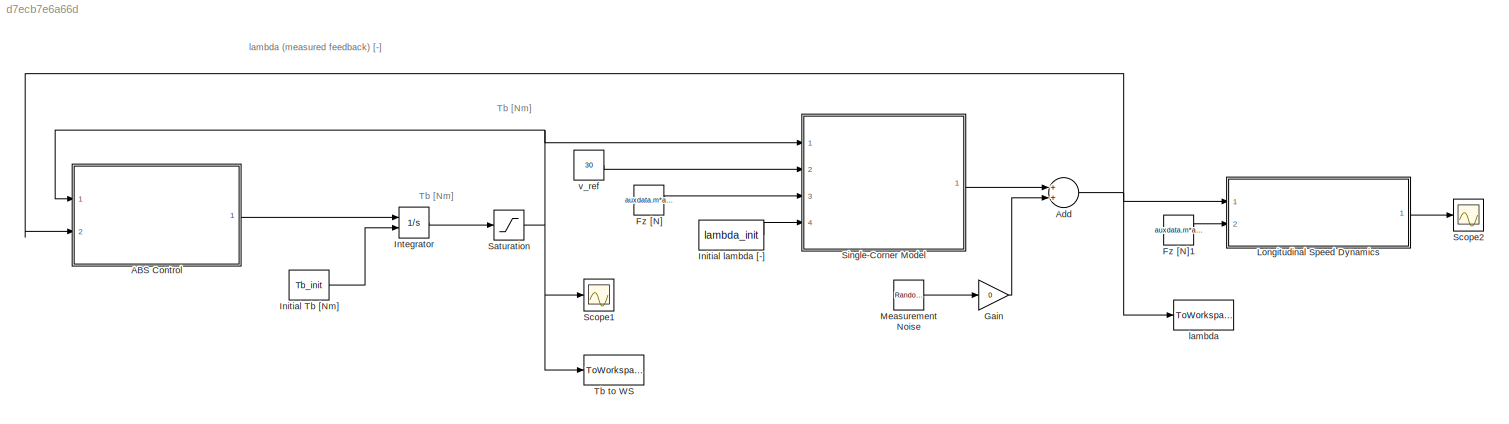
MODEL slx_d7ecb7e6a66d
KIND model
CONFIG AbsTol = auto
CONFIG EnableMultiTasking = on
CONFIG FixedStep = auto
CONFIG MaxStep = 1e-3
CONFIG MinStep = auto
CONFIG RelTol = 1e-3
CONFIG SampleTimeConstraint = Unconstrained
CONFIG Solver = VariableStepAuto
CONFIG SolverName = VariableStepAuto
CONFIG StartTime = 0.0
CONFIG StopTime = tf
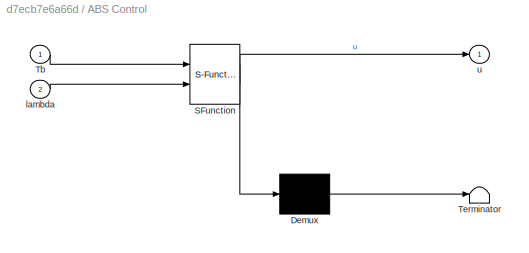
BLOCK [SubSystem] ABS Control
  ErrorFcn = Stateflow.Translate.translate
  PermitHierarchicalResolution = ExplicitOnly
  Ports = [2, 1]
  RequestExecContextInheritance = off
  SFBlockType = Chart
  TreatAsAtomicUnit = on
  Variant = off
BLOCK [Demux] ABS Control/ Demux 
  Outputs = 1
  Ports = [1, 1]
BLOCK [S-Function] ABS Control/ SFunction 
  EnableBusSupport = on
  FunctionName = sf_sfun
  Parameters = Tb_max,Tb_min,k,lambda_max,lambda_min
  PortCounts = [2 2]
  Ports = [2, 2]
  SFcnIsStateOwnerBlock = off
  SFunctionDeploymentMode = off
  Tag = Stateflow S-Function HAB_control 3
BLOCK [Terminator] ABS Control/ Terminator 
BLOCK [Inport] ABS Control/Tb
  IconDisplay = Port number
BLOCK [Inport] ABS Control/lambda
  IconDisplay = Port number
  Port = 2
BLOCK [Outport] ABS Control/u
  IconDisplay = Port number
BLOCK [Sum] Add
  InputSameDT = off
  OutDataTypeStr = Inherit: Inherit via internal rule
  Ports = [2, 1]
  SaturateOnIntegerOverflow = off
BLOCK [Constant] Fz [N]
  Value = auxdata.m*auxdata.g
BLOCK [Constant] Fz [N]1
  Value = auxdata.m*auxdata.g
BLOCK [Gain] Gain
  Gain = 0
  OutDataTypeStr = Inherit: Inherit via internal rule
  ParamDataTypeStr = Inherit: Inherit via internal rule
  SaturateOnIntegerOverflow = off
BLOCK [Constant] Initial Tb [Nm]
  Value = Tb_init
BLOCK [Constant] Initial lambda [-]
  Value = lambda_init
BLOCK [Integrator] Integrator
  InitialConditionSource = external
  Ports = [2, 1]
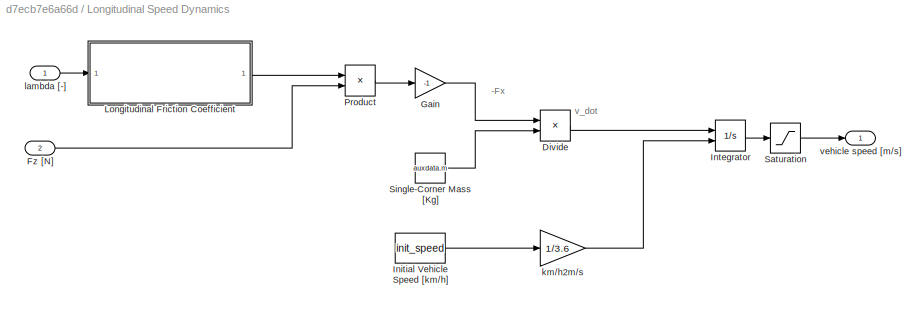
BLOCK [SubSystem] Longitudinal Speed Dynamics
  Ports = [2, 1]
  RequestExecContextInheritance = off
  Variant = off
BLOCK [Product] Longitudinal Speed Dynamics/Divide
  InputSameDT = off
  Inputs = */
  OutDataTypeStr = Inherit: Inherit via internal rule
  Ports = [2, 1]
  RndMeth = Floor
  SaturateOnIntegerOverflow = off
BLOCK [Inport] Longitudinal Speed Dynamics/Fz [N]
  IconDisplay = Port number
  Port = 2
BLOCK [Gain] Longitudinal Speed Dynamics/Gain
  Gain = -1
  OutDataTypeStr = Inherit: Inherit via internal rule
  ParamDataTypeStr = Inherit: Inherit via internal rule
  SaturateOnIntegerOverflow = off
BLOCK [Constant] Longitudinal Speed Dynamics/Initial Vehicle Speed [km//h]
  Value = init_speed
BLOCK [Integrator] Longitudinal Speed Dynamics/Integrator
  InitialConditionSource = external
  Ports = [2, 1]
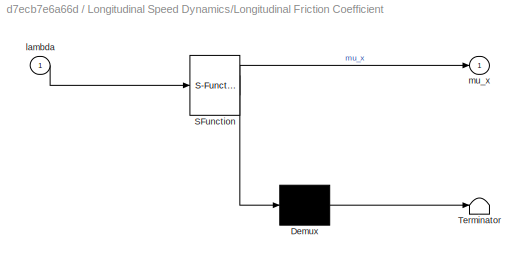
BLOCK [SubSystem] Longitudinal Speed Dynamics/Longitudinal Friction Coefficient
  ErrorFcn = Stateflow.Translate.translate
  PermitHierarchicalResolution = ExplicitOnly
  Ports = [1, 1]
  RequestExecContextInheritance = off
  SFBlockType = MATLAB Function
  TreatAsAtomicUnit = on
  Variant = off
BLOCK [Demux] Longitudinal Speed Dynamics/Longitudinal Friction Coefficient/ Demux 
  Outputs = 1
  Ports = [1, 1]
BLOCK [S-Function] Longitudinal Speed Dynamics/Longitudinal Friction Coefficient/ SFunction 
  EnableBusSupport = on
  FunctionName = sf_sfun
  Parameters = auxdata
  PortCounts = [1 2]
  Ports = [1, 2]
  SFcnIsStateOwnerBlock = off
  SFunctionDeploymentMode = off
  Tag = Stateflow S-Function HAB_control 1
BLOCK [Terminator] Longitudinal Speed Dynamics/Longitudinal Friction Coefficient/ Terminator 
BLOCK [Inport] Longitudinal Speed Dynamics/Longitudinal Friction Coefficient/lambda
  IconDisplay = Port number
BLOCK [Outport] Longitudinal Speed Dynamics/Longitudinal Friction Coefficient/mu_x
  IconDisplay = Port number
BLOCK [Product] Longitudinal Speed Dynamics/Product
  InputSameDT = off
  OutDataTypeStr = Inherit: Inherit via internal rule
  Ports = [2, 1]
  RndMeth = Floor
  SaturateOnIntegerOverflow = off
BLOCK [Saturate] Longitudinal Speed Dynamics/Saturation
  InputPortMap = u0
  LowerLimit = 0
  Ports = [1, 1]
  UpperLimit = 100
BLOCK [Constant] Longitudinal Speed Dynamics/Single-Corner Mass [Kg]
  Value = auxdata.m
BLOCK [Gain] Longitudinal Speed Dynamics/km//h2m//s
  Gain = 1/3.6
  OutDataTypeStr = Inherit: Inherit via internal rule
  ParamDataTypeStr = Inherit: Inherit via internal rule
  SaturateOnIntegerOverflow = off
BLOCK [Inport] Longitudinal Speed Dynamics/lambda [-]
  IconDisplay = Port number
BLOCK [Outport] Longitudinal Speed Dynamics/vehicle speed [m//s]
  IconDisplay = Port number
BLOCK [RandomNumber] Measurement Noise
  Variance = 0.001
BLOCK [Saturate] Saturation
  InputPortMap = u0
  LowerLimit = 0
  Ports = [1, 1]
  UpperLimit = 2e3
BLOCK [Scope] Scope1
  NumInputPorts = 1
  Ports = [1]
  ScopeSpecificationString = Simulink.scopes.TimeScopeBlockCfg('CurrentConfiguration', extmgr.ConfigurationSet(extmgr.Configuration('Core','General UI',true),extmgr.Configuration('Core','Source UI',true),extmgr.Configuration('Sources','WiredSimulink',true,'DataLoggingVariableName','ScopeData1'),extmgr.Configuration('Visuals','Time Domain',true,'SerializedDisplays',{struct('MinYLimReal','-112.9906','MaxYLimReal','1016.91537','...<+1436ch>
BLOCK [Scope] Scope2
  NumInputPorts = 1
  Ports = [1]
  ScopeSpecificationString = Simulink.scopes.TimeScopeBlockCfg('CurrentConfiguration', extmgr.ConfigurationSet(extmgr.Configuration('Core','General UI',true),extmgr.Configuration('Core','Source UI',true),extmgr.Configuration('Sources','WiredSimulink',true,'DataLoggingVariableName','ScopeData1'),extmgr.Configuration('Visuals','Time Domain',true,'SerializedDisplays',{struct('MinYLimReal','-3.47222','MaxYLimReal','31.25','YLabel...<+1397ch>
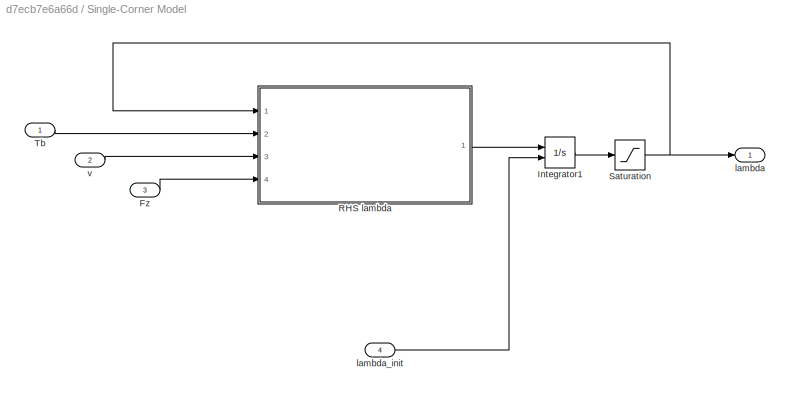
BLOCK [SubSystem] Single-Corner Model
  Ports = [4, 1]
  RequestExecContextInheritance = off
  Variant = off
BLOCK [Inport] Single-Corner Model/Fz
  IconDisplay = Port number
  Port = 3
BLOCK [Integrator] Single-Corner Model/Integrator1
  InitialConditionSource = external
  Ports = [2, 1]
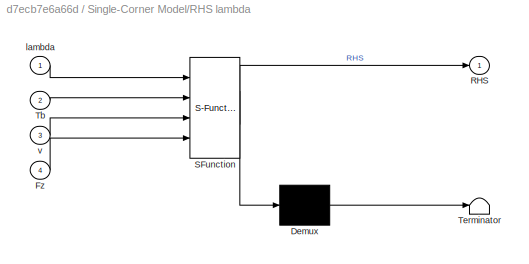
BLOCK [SubSystem] Single-Corner Model/RHS lambda
  ErrorFcn = Stateflow.Translate.translate
  PermitHierarchicalResolution = ExplicitOnly
  Ports = [4, 1]
  RequestExecContextInheritance = off
  SFBlockType = MATLAB Function
  TreatAsAtomicUnit = on
  Variant = off
BLOCK [Demux] Single-Corner Model/RHS lambda/ Demux 
  Outputs = 1
  Ports = [1, 1]
BLOCK [S-Function] Single-Corner Model/RHS lambda/ SFunction 
  EnableBusSupport = on
  FunctionName = sf_sfun
  Parameters = auxdata
  PortCounts = [4 2]
  Ports = [4, 2]
  SFcnIsStateOwnerBlock = off
  SFunctionDeploymentMode = off
  Tag = Stateflow S-Function HAB_control 2
BLOCK [Terminator] Single-Corner Model/RHS lambda/ Terminator 
BLOCK [Inport] Single-Corner Model/RHS lambda/Fz
  IconDisplay = Port number
  Port = 4
BLOCK [Outport] Single-Corner Model/RHS lambda/RHS
  IconDisplay = Port number
BLOCK [Inport] Single-Corner Model/RHS lambda/Tb
  IconDisplay = Port number
  Port = 2
BLOCK [Inport] Single-Corner Model/RHS lambda/lambda
  IconDisplay = Port number
BLOCK [Inport] Single-Corner Model/RHS lambda/v
  IconDisplay = Port number
  Port = 3
BLOCK [Saturate] Single-Corner Model/Saturation
  InputPortMap = u0
  LowerLimit = 0
  Ports = [1, 1]
  UpperLimit = 0.99
BLOCK [Inport] Single-Corner Model/Tb
  IconDisplay = Port number
BLOCK [Outport] Single-Corner Model/lambda
  IconDisplay = Port number
BLOCK [Inport] Single-Corner Model/lambda_init
  IconDisplay = Port number
  Port = 4
BLOCK [Inport] Single-Corner Model/v
  IconDisplay = Port number
  Port = 2
BLOCK [ToWorkspace] Tb to WS
  FixptAsFi = on
  MaxDataPoints = inf
  Ports = [1]
  SampleTime = -1
  Save2DSignal = 3-D array (concatenate along third dimension)
  SaveFormat = Timeseries
  VariableName = Tb_sim
BLOCK [ToWorkspace] lambda
  FixptAsFi = on
  MaxDataPoints = inf
  Ports = [1]
  SampleTime = -1
  Save2DSignal = 3-D array (concatenate along third dimension)
  SaveFormat = Timeseries
  VariableName = lambda_sim
BLOCK [Constant] v_ref
  Value = 30
ANNOTATION (root): Tb [Nm]
ANNOTATION (root): lambda (measured feedback) [-]
ANNOTATION Longitudinal Speed Dynamics: -Fx
ANNOTATION Longitudinal Speed Dynamics: v_dot
LINE ABS Control:1 -> Integrator:1
NET Add:1 -> ABS Control:2, Longitudinal Speed Dynamics:1, lambda:1
LINE Fz [N]1:1 -> Longitudinal Speed Dynamics:2
LINE Fz [N]:1 -> Single-Corner Model:3
LINE Gain:1 -> Add:2
LINE Initial Tb [Nm]:1 -> Integrator:2
LINE Initial lambda [-]:1 -> Single-Corner Model:4
LINE Integrator:1 -> Saturation:1
LINE Longitudinal Speed Dynamics/Divide:1 -> Longitudinal Speed Dynamics/Integrator:1
LINE Longitudinal Speed Dynamics/Fz [N]:1 -> Longitudinal Speed Dynamics/Product:2
LINE Longitudinal Speed Dynamics/Gain:1 -> Longitudinal Speed Dynamics/Divide:1
LINE Longitudinal Speed Dynamics/Initial Vehicle Speed [km//h]:1 -> Longitudinal Speed Dynamics/km//h2m//s:1
LINE Longitudinal Speed Dynamics/Integrator:1 -> Longitudinal Speed Dynamics/Saturation:1
LINE Longitudinal Speed Dynamics/Longitudinal Friction Coefficient:1 -> Longitudinal Speed Dynamics/Product:1
LINE Longitudinal Speed Dynamics/Product:1 -> Longitudinal Speed Dynamics/Gain:1
LINE Longitudinal Speed Dynamics/Saturation:1 -> Longitudinal Speed Dynamics/vehicle speed [m//s]:1
LINE Longitudinal Speed Dynamics/Single-Corner Mass [Kg]:1 -> Longitudinal Speed Dynamics/Divide:2
LINE Longitudinal Speed Dynamics/km//h2m//s:1 -> Longitudinal Speed Dynamics/Integrator:2
LINE Longitudinal Speed Dynamics/lambda [-]:1 -> Longitudinal Speed Dynamics/Longitudinal Friction Coefficient:1
LINE Longitudinal Speed Dynamics:1 -> Scope2:1
LINE Measurement Noise:1 -> Gain:1
NET Saturation:1 -> ABS Control:1, Scope1:1, Single-Corner Model:1, Tb to WS:1
LINE Single-Corner Model/Fz:1 -> Single-Corner Model/RHS lambda:4
LINE Single-Corner Model/Integrator1:1 -> Single-Corner Model/Saturation:1
LINE Single-Corner Model/RHS lambda:1 -> Single-Corner Model/Integrator1:1
NET Single-Corner Model/Saturation:1 -> Single-Corner Model/RHS lambda:1, Single-Corner Model/lambda:1
LINE Single-Corner Model/Tb:1 -> Single-Corner Model/RHS lambda:2
LINE Single-Corner Model/lambda_init:1 -> Single-Corner Model/Integrator1:2
LINE Single-Corner Model/v:1 -> Single-Corner Model/RHS lambda:3
LINE Single-Corner Model:1 -> Add:1
LINE v_ref:1 -> Single-Corner Model:2
note: NET lines group one-source signal fan-out (src -> all destinations, sorted); 1:1 wires keep LINE
CHART Longitudinal Speed Dynamics/Longitudinal Friction Coefficient states=1 transitions=1
  STATE_LABEL 'eML_blk_kernel()'
  STATE_LABEL 'SCRIPT:\nfunction mu_x = LongitudinalFrction(lambda,auxdata)\n    \nmu_x = burckhardt(lambda,auxdata.road_condition);\n'
CHART Single-Corner Model/RHS lambda states=1 transitions=1
  STATE_LABEL 'eML_blk_kernel()'
  STATE_LABEL "SCRIPT:\nfunction RHS = lambdaDyn(lambda,Tb,v,Fz,auxdata)\n%% RHS = LAMBDADYN(lambda,Fz,road_condition)\n% Right hand side of the longitudinal slip dynamics\n\nomega = (1-lambda)*v/auxdata.r_w + eps;\n\nPsi = (auxdata.r_w + auxdata.J/(auxdata.r_w*auxdata.m)*(1-lambda))*Fz*burckhardt(lambda,'Dry Asphalt');\n\nRHS = -(1-lambda)/(auxdata.J*omega)*(Psi - Tb);\n\nend"
CHART ABS Control states=4 transitions=5
  STATE_LABEL 'State_q3\nentry: u = 0;'
  STATE_LABEL 'State_q2\nentry: u = -k;'
  STATE_LABEL 'State_q0\nentry: u = k;'
  STATE_LABEL 'State_q1\nentry: u = 0;'
